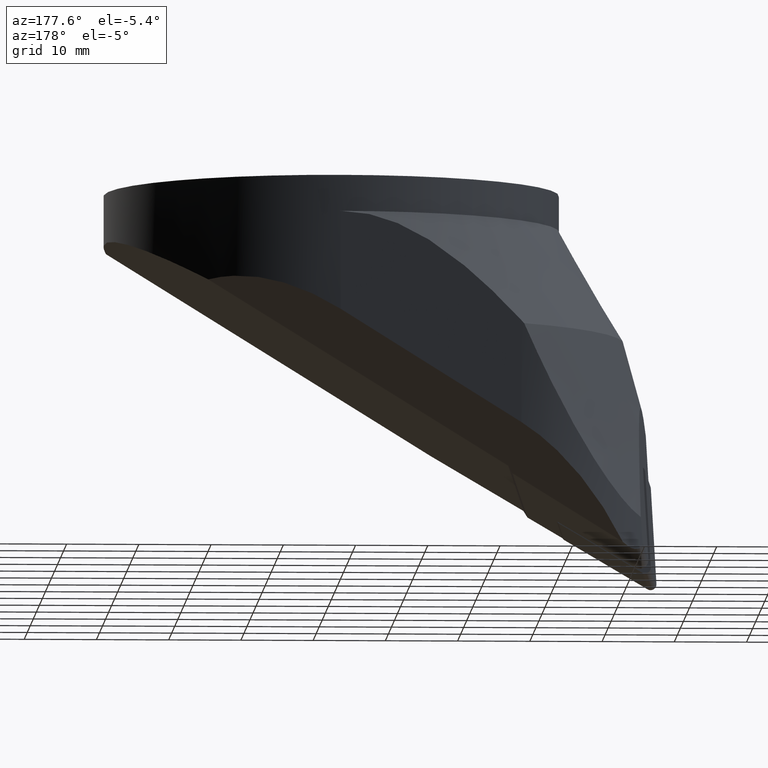
[diagram: clean part render]
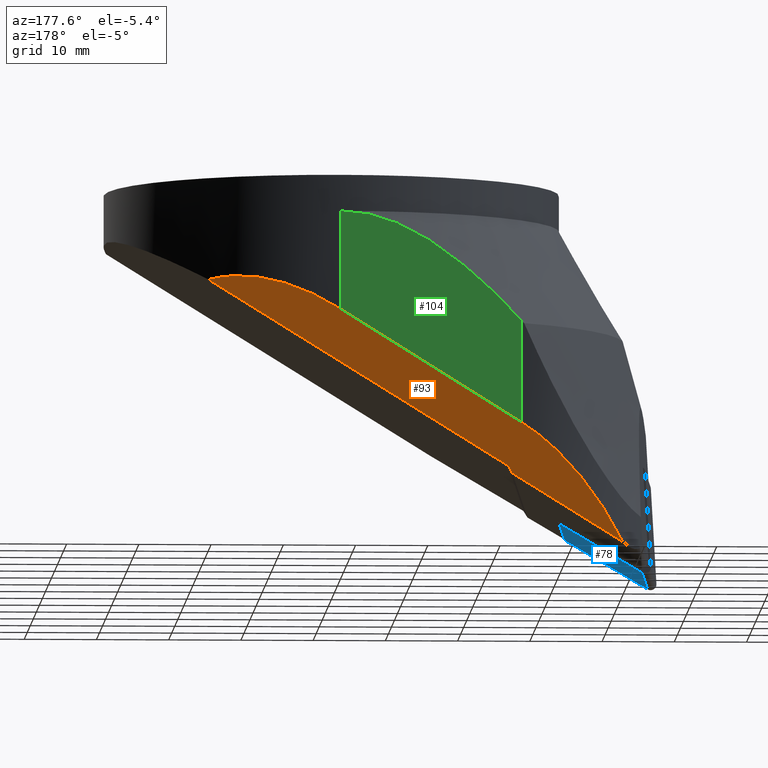
[diagram: same view with three faces highlighted in distinct colors, each labeled with its STEP entity id]
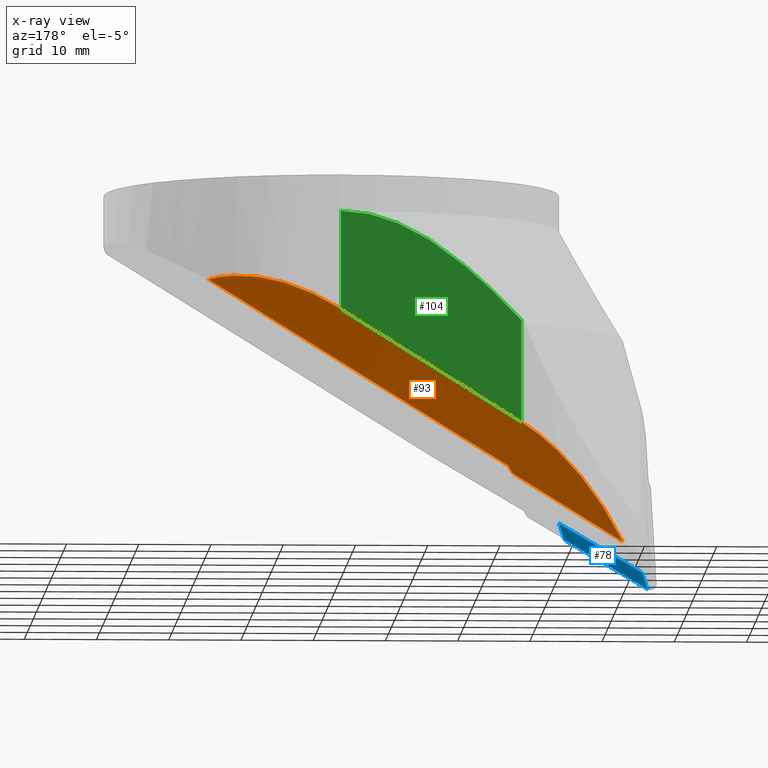
[diagram: x-ray of the same camera — body ghosted, the three highlighted faces saturated]
A machine part, auxiliary view with three faces highlighted in distinct colors.
The next image is the same camera in x-ray (body ghosted, the three faces saturated) — at least one of them is partly hidden behind the body in this view.
Their STEP definitions:

[orange] entity #93 — the highlighted planar face has unit normal (-0.3747, -0.7071, 0.5997).
#93=ADVANCED_FACE('',(#142),#143,.F.);
#142=FACE_OUTER_BOUND('',#202,.T.);
#143=PLANE('',#203);
#202=EDGE_LOOP('',(#380,#381,#382,#383,#384,#385));
#203=AXIS2_PLACEMENT_3D('',#386,#387,#388);
#380=ORIENTED_EDGE('',*,*,#529,.T.);
#381=ORIENTED_EDGE('',*,*,#522,.T.);
#382=ORIENTED_EDGE('',*,*,#527,.T.);
#383=ORIENTED_EDGE('',*,*,#533,.T.);
#384=ORIENTED_EDGE('',*,*,#534,.T.);
#385=ORIENTED_EDGE('',*,*,#535,.T.);
#386=CARTESIAN_POINT('',(-11.2666437124819,26.9188179307469,-31.0688416532903));
#387=DIRECTION('',(-0.374709505220685,-0.707106781186548,0.599660559564549));
#388=DIRECTION('',(0.848048096156426,0.0,0.529919264233206));
#522=EDGE_CURVE('',#635,#636,#637,.T.);
#527=EDGE_CURVE('',#636,#642,#644,.T.);
#529=EDGE_CURVE('',#646,#635,#647,.T.);
#533=EDGE_CURVE('',#642,#653,#654,.T.);
#534=EDGE_CURVE('',#653,#655,#656,.T.);
#535=EDGE_CURVE('',#655,#646,#657,.T.);
#635=VERTEX_POINT('',#813);
#636=VERTEX_POINT('',#814);
#637=LINE('',#815,#816);
#642=VERTEX_POINT('',#824);
#644=LINE('',#826,#827);
#646=VERTEX_POINT('',#847);
#647=LINE('',#848,#849);
#653=VERTEX_POINT('',#856);
#654=ELLIPSE('',#857,33.3522018098426,20.0);
#655=VERTEX_POINT('',#858);
#656=LINE('',#859,#860);
#657=ELLIPSE('',#861,52.5297178505021,31.5);
#813=CARTESIAN_POINT('',(-23.4045003696218,25.9457413465209,-39.8008471691423));
#814=CARTESIAN_POINT('',(-24.0282913968226,25.4280511146331,-40.8010842051097));
#815=CARTESIAN_POINT('',(-24.1700580523013,25.3103975903783,-41.0284043381218));
#816=VECTOR('',#1003,10.0);
#824=CARTESIAN_POINT('',(-39.2912630221238,25.4914188427221,-50.2637255363895));
#826=CARTESIAN_POINT('',(-19.1378576325663,25.4077473569759,-37.76914378082));
#827=VECTOR('',#1010,10.0);
#847=CARTESIAN_POINT('',(18.1102932231641,25.7733831572616,-14.0627660565857));
#848=CARTESIAN_POINT('',(14.7206770703727,25.7874559263114,-16.1642389998629));
#849=VECTOR('',#1011,10.0);
#856=CARTESIAN_POINT('',(-25.0,31.5,-34.2483641382788));
#857=AXIS2_PLACEMENT_3D('',#1019,#1020,#1021);
#858=CARTESIAN_POINT('',(0.0,31.5,-18.6266303405455));
#859=CARTESIAN_POINT('',(-25.0,31.5,-34.2483641382788));
#860=VECTOR('',#1022,29.4794600840525);
#861=AXIS2_PLACEMENT_3D('',#1023,#1024,#1025);
#1003=DIRECTION('',(-0.484507194565009,-0.402097226424013,-0.77689806211424));
#1010=DIRECTION('',(-0.849907402575597,0.00352858555393561,-0.526920255950738));
#1011=DIRECTION('',(-0.849907402575595,0.00352858555393143,-0.526920255950741));
#1019=CARTESIAN_POINT('',(-25.0,11.5,-57.8319322055207));
#1020=DIRECTION('',(0.374709505220685,0.707106781186548,-0.59966055956455));
#1021=DIRECTION('',(-0.280783826400162,-0.529861519200397,-0.80025446784303));
#1022=DIRECTION('',(0.848048096156424,0.0,0.529919264233208));
#1023=CARTESIAN_POINT('',(0.0,2.537951E-014,-55.7707500464515));
#1024=DIRECTION('',(0.374709505220685,0.707106781186548,-0.59966055956455));
#1025=DIRECTION('',(-0.280783826400162,-0.529861519200397,-0.80025446784303));

[blue] entity #78 — the highlighted planar face has unit normal (0.5267, 0.0403, -0.8491).
#78=ADVANCED_FACE('',(#112),#113,.T.);
#112=FACE_OUTER_BOUND('',#172,.T.);
#113=PLANE('',#173);
#172=EDGE_LOOP('',(#251,#252,#253,#254));
#173=AXIS2_PLACEMENT_3D('',#255,#256,#257);
#251=ORIENTED_EDGE('',*,*,#490,.T.);
#252=ORIENTED_EDGE('',*,*,#491,.F.);
#253=ORIENTED_EDGE('',*,*,#484,.T.);
#254=ORIENTED_EDGE('',*,*,#489,.T.);
#255=CARTESIAN_POINT('',(-31.149934149267,8.54083317162176,-46.146501743689));
#256=DIRECTION('',(0.526656513222578,0.0402689242801206,-0.849123860704408));
#257=DIRECTION('',(-0.849813162933969,0.0,-0.52708404273338));
#484=EDGE_CURVE('',#572,#570,#573,.T.);
#489=EDGE_CURVE('',#570,#579,#581,.T.);
#490=EDGE_CURVE('',#579,#582,#583,.T.);
#491=EDGE_CURVE('',#572,#582,#584,.T.);
#570=VERTEX_POINT('',#706);
#572=VERTEX_POINT('',#708);
#573=LINE('',#709,#710);
#579=VERTEX_POINT('',#718);
#581=LINE('',#720,#721);
#582=VERTEX_POINT('',#722);
#583=LINE('',#723,#724);
#584=LINE('',#725,#726);
#706=CARTESIAN_POINT('',(-31.149934149267,8.54083317162176,-46.146501743689));
#708=CARTESIAN_POINT('',(-42.5695400229527,10.6508428607285,-53.1292780685608));
#709=CARTESIAN_POINT('',(-42.5695400229527,10.6508428607285,-53.1292780685608));
#710=VECTOR('',#943,10.0);
#718=CARTESIAN_POINT('',(-32.388353985794,-2.42452718004704,-47.4346355358654));
#720=CARTESIAN_POINT('',(-31.149934149267,8.54083317162176,-46.146501743689));
#721=VECTOR('',#952,10.0);
#722=CARTESIAN_POINT('',(-43.8079598594797,-0.314517490940271,-54.4174118607371));
#723=CARTESIAN_POINT('',(-43.8079598594797,-0.314517490940269,-54.4174118607371));
#724=VECTOR('',#953,10.0);
#725=CARTESIAN_POINT('',(-42.5695400229527,10.6508428607285,-53.1292780685608));
#726=VECTOR('',#954,10.0);
#943=DIRECTION('',(0.842738152832031,-0.155713400928574,0.515311306427982));
#952=DIRECTION('',(-0.111468932180646,-0.986981129763168,-0.115943635659434));
#953=DIRECTION('',(-0.842738152832031,0.155713400928574,-0.515311306427982));
#954=DIRECTION('',(-0.111468932180646,-0.986981129763168,-0.115943635659434));

[green] entity #104 — the highlighted planar face has unit normal (0, -1, 0).
#104=ADVANCED_FACE('',(#164),#165,.F.);
#164=FACE_OUTER_BOUND('',#224,.T.);
#165=PLANE('',#225);
#224=EDGE_LOOP('',(#469,#470,#471,#472));
#225=AXIS2_PLACEMENT_3D('',#473,#474,#475);
#469=ORIENTED_EDGE('',*,*,#534,.F.);
#470=ORIENTED_EDGE('',*,*,#538,.F.);
#471=ORIENTED_EDGE('',*,*,#541,.F.);
#472=ORIENTED_EDGE('',*,*,#546,.F.);
#473=CARTESIAN_POINT('',(-12.5,31.5000000000001,-19.6191820691393));
#474=DIRECTION('',(0.0,-1.0,0.0));
#475=DIRECTION('',(0.0,0.0,-1.0));
#534=EDGE_CURVE('',#653,#655,#656,.T.);
#538=EDGE_CURVE('',#660,#653,#662,.T.);
#541=EDGE_CURVE('',#666,#660,#668,.T.);
#546=EDGE_CURVE('',#655,#666,#675,.T.);
#653=VERTEX_POINT('',#856);
#655=VERTEX_POINT('',#858);
#656=LINE('',#859,#860);
#660=VERTEX_POINT('',#881);
#662=LINE('',#883,#884);
#666=VERTEX_POINT('',#889);
#668=(B_SPLINE_CURVE(2,(#892,#893,#894),.UNSPECIFIED.,.F.,.F.)B_SPLINE_CURVE_WITH_KNOTS((3,3),(30.3506460442706,60.3270896757864),.UNSPECIFIED.)RATIONAL_B_SPLINE_CURVE((1.0,1.06781915335888,1.00167232623522))BOUNDED_CURVE()REPRESENTATION_ITEM('')GEOMETRIC_REPRESENTATION_ITEM()CURVE());
#675=LINE('',#909,#910);
#856=CARTESIAN_POINT('',(-25.0,31.5,-34.2483641382788));
#858=CARTESIAN_POINT('',(0.0,31.5,-18.6266303405455));
#859=CARTESIAN_POINT('',(-25.0,31.5,-34.2483641382788));
#860=VECTOR('',#1022,29.4794600840525);
#881=CARTESIAN_POINT('',(-25.0,31.5,-20.0949040821064));
#883=CARTESIAN_POINT('',(-25.0,31.5,-20.0949040821064));
#884=VECTOR('',#1029,14.1534600561724);
#889=CARTESIAN_POINT('',(0.0,31.5,-4.99999999999989));
#892=CARTESIAN_POINT('',(0.0,31.5,-4.99999999999989));
#893=CARTESIAN_POINT('',(-10.9809591383467,31.5,-4.99999999999989));
#894=CARTESIAN_POINT('',(-25.0,31.5,-20.0949040821064));
#909=CARTESIAN_POINT('',(0.0,31.5,-18.6266303405455));
#910=VECTOR('',#1042,13.6266303405456);
#1022=DIRECTION('',(0.848048096156424,0.0,0.529919264233208));
#1029=DIRECTION('',(0.0,0.0,-1.0));
#1042=DIRECTION('',(0.0,0.0,1.0));